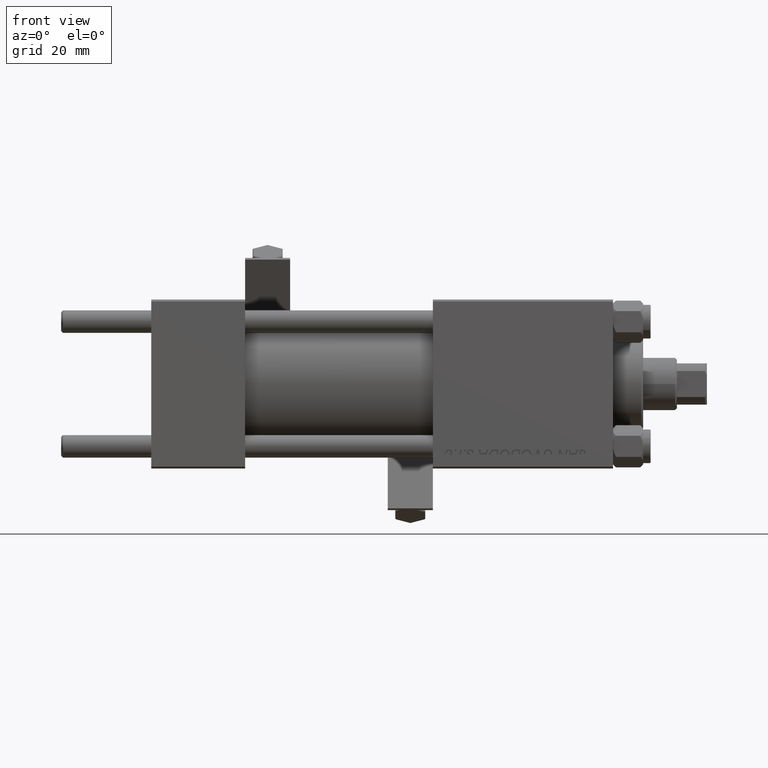
[diagram: clean part render]
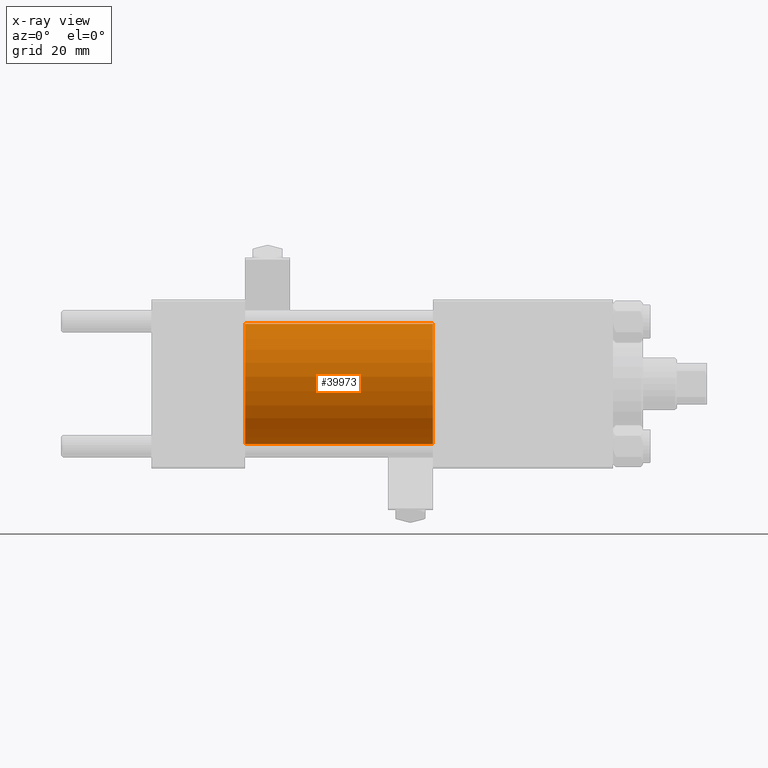
[diagram: x-ray — body ghosted, one internal face saturated and labeled with its STEP entity id]
A machine part, front view, then the same camera in x-ray: the body is ghosted and one INTERNAL B-rep face — a face not visible from any outside direction — is saturated and labeled: STEP entity #39973.
In plain terms, the highlighted cylindrical surface (partial cylindrical patch) has radius 16 mm, axis along (-1, -0, -0).
Its self-contained STEP definition (entity closure, byte-faithful):
#1735 = AXIS2_PLACEMENT_3D ( 'NONE', #29698, #45388, #49501 ) ;
#2286 = AXIS2_PLACEMENT_3D ( 'NONE', #5290, #13556, #17157 ) ;
#2579 = EDGE_CURVE ( 'NONE', #32706, #28152, #31657, .T. ) ;
#3184 = DIRECTION ( 'NONE',  ( 1.000000000000000000, 0.000000000000000000, 0.000000000000000000 ) ) ;
#3934 = CARTESIAN_POINT ( 'NONE',  ( 75.00000000000001421, 0.000000000000000000, 0.000000000000000000 ) ) ;
#4090 = ORIENTED_EDGE ( 'NONE', *, *, #46428, .T. ) ;
#4157 = CIRCLE ( 'NONE', #1735, 16.00000000000000000 ) ;
#5290 = CARTESIAN_POINT ( 'NONE',  ( 75.00000000000001421, 0.000000000000000000, 0.000000000000000000 ) ) ;
#9156 = FACE_OUTER_BOUND ( 'NONE', #11190, .T. ) ;
#10824 = ORIENTED_EDGE ( 'NONE', *, *, #15319, .T. ) ;
#11190 = EDGE_LOOP ( 'NONE', ( #4090, #10824, #42322, #13569 ) ) ;
#11209 = VERTEX_POINT ( 'NONE', #32203 ) ;
#13556 = DIRECTION ( 'NONE',  ( -1.000000000000000000, -0.000000000000000000, -0.000000000000000000 ) ) ;
#13569 = ORIENTED_EDGE ( 'NONE', *, *, #2579, .F. ) ;
#14436 = CARTESIAN_POINT ( 'NONE',  ( 75.00000000000001421, 0.000000000000000000, 16.00000000000000000 ) ) ;
#14808 = CARTESIAN_POINT ( 'NONE',  ( 75.00000000000001421, 1.959434878635765131E-15, -16.00000000000000000 ) ) ;
#15319 = EDGE_CURVE ( 'NONE', #11209, #22108, #38012, .T. ) ;
#17157 = DIRECTION ( 'NONE',  ( 0.000000000000000000, 0.000000000000000000, 1.000000000000000000 ) ) ;
#22108 = VERTEX_POINT ( 'NONE', #46455 ) ;
#23845 = VECTOR ( 'NONE', #35251, 1000.000000000000000 ) ;
#26414 = AXIS2_PLACEMENT_3D ( 'NONE', #3934, #3184, #46203 ) ;
#26680 = DIRECTION ( 'NONE',  ( -1.000000000000000000, -0.000000000000000000, -0.000000000000000000 ) ) ;
#28152 = VERTEX_POINT ( 'NONE', #39072 ) ;
#29698 = CARTESIAN_POINT ( 'NONE',  ( 25.00000000000000000, 0.000000000000000000, 0.000000000000000000 ) ) ;
#31657 = LINE ( 'NONE', #47327, #23845 ) ;
#32203 = CARTESIAN_POINT ( 'NONE',  ( 75.00000000000001421, 1.959434878635765131E-15, -16.00000000000000000 ) ) ;
#32706 = VERTEX_POINT ( 'NONE', #14436 ) ;
#35251 = DIRECTION ( 'NONE',  ( -1.000000000000000000, -0.000000000000000000, -0.000000000000000000 ) ) ;
#37923 = CIRCLE ( 'NONE', #26414, 16.00000000000000000 ) ;
#38012 = LINE ( 'NONE', #14808, #50205 ) ;
#39072 = CARTESIAN_POINT ( 'NONE',  ( 25.00000000000000000, 0.000000000000000000, 16.00000000000000000 ) ) ;
#39973 = ADVANCED_FACE ( 'NONE', ( #9156 ), #45469, .F. ) ;
#42322 = ORIENTED_EDGE ( 'NONE', *, *, #46591, .F. ) ;
#45388 = DIRECTION ( 'NONE',  ( 1.000000000000000000, 0.000000000000000000, 0.000000000000000000 ) ) ;
#45469 = CYLINDRICAL_SURFACE ( 'NONE', #2286, 16.00000000000000000 ) ;
#46203 = DIRECTION ( 'NONE',  ( 0.000000000000000000, 0.000000000000000000, -1.000000000000000000 ) ) ;
#46428 = EDGE_CURVE ( 'NONE', #32706, #11209, #37923, .T. ) ;
#46455 = CARTESIAN_POINT ( 'NONE',  ( 25.00000000000000000, 1.959434878635765131E-15, -16.00000000000000000 ) ) ;
#46591 = EDGE_CURVE ( 'NONE', #28152, #22108, #4157, .T. ) ;
#47327 = CARTESIAN_POINT ( 'NONE',  ( 75.00000000000001421, 0.000000000000000000, 16.00000000000000000 ) ) ;
#49501 = DIRECTION ( 'NONE',  ( 0.000000000000000000, 0.000000000000000000, -1.000000000000000000 ) ) ;
#50205 = VECTOR ( 'NONE', #26680, 1000.000000000000000 ) ;